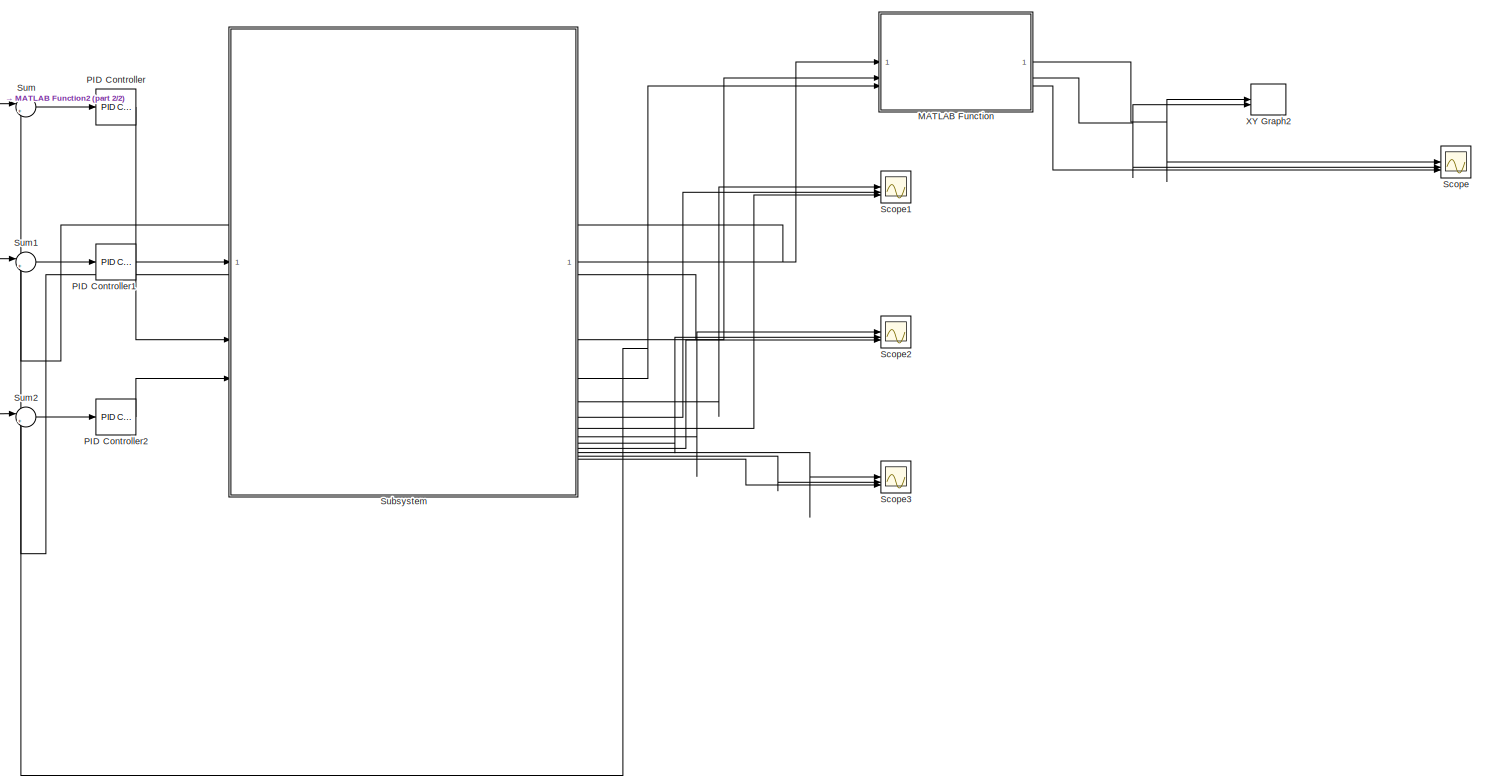
[diagram: root canvas - part 1/2, most of the canvas]
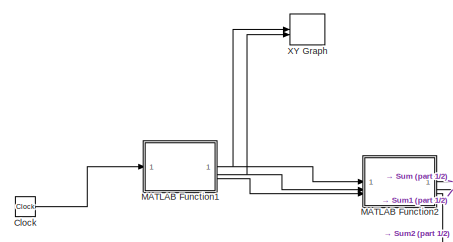
[diagram: root canvas - part 2/2, top left region]
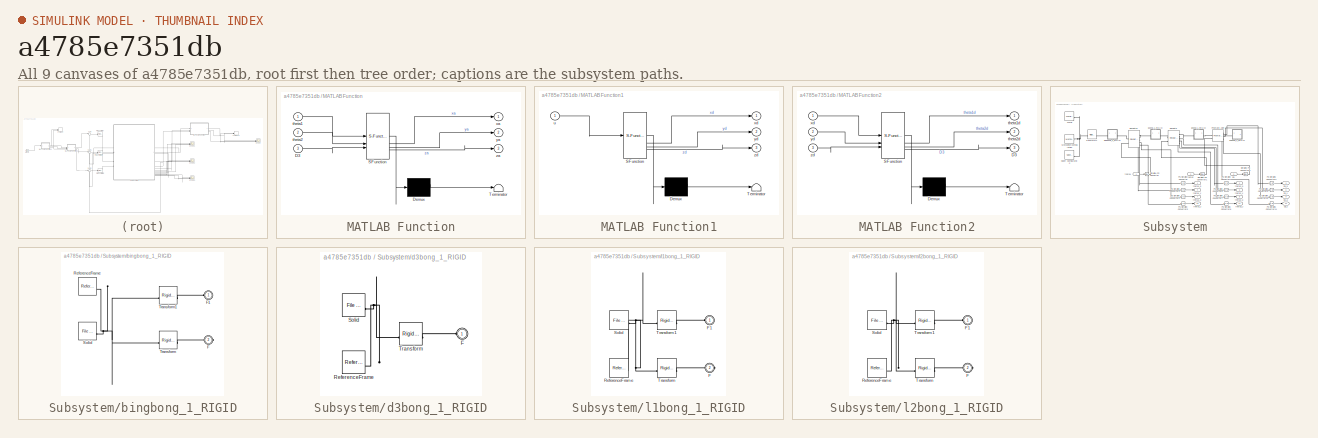
[diagram: thumbnail index - all 9 canvases of the model, root first then tree order]
MODEL slx_a4785e7351db
KIND model
CONFIG AbsTol = auto
CONFIG EnableMultiTasking = off
CONFIG FixedStep = auto
CONFIG MaxStep = auto
CONFIG MinStep = auto
CONFIG RelTol = 1e-3
CONFIG SampleTimeConstraint = Unconstrained
CONFIG SolverName = VariableStepAuto
CONFIG StartTime = 0.0
CONFIG StopTime = 10.0
WORKSPACE source: external: MATLAB File  (data not in archive)
BLOCK [Clock] Clock
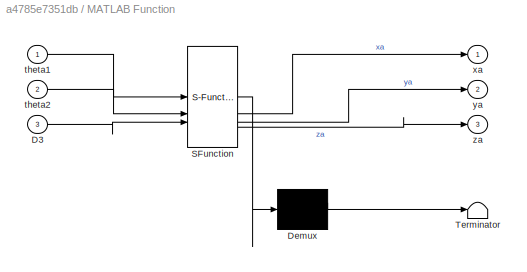
BLOCK [SubSystem] MATLAB Function
  ErrorFcn = Stateflow.Translate.translate
  PermitHierarchicalResolution = ExplicitOnly
  SFBlockType = MATLAB Function
  TreatAsAtomicUnit = on
BLOCK [Demux] MATLAB Function/ Demux 
  Outputs = 1
BLOCK [S-Function] MATLAB Function/ SFunction 
  EnableBusSupport = on
  FunctionName = sf_sfun
  PortCounts = [3 4]
  SFcnIsStateOwnerBlock = off
  SFunctionDeploymentMode = off
  Tag = Stateflow S-Function 2
BLOCK [Terminator] MATLAB Function/ Terminator 
BLOCK [Inport] MATLAB Function/D3
  Port = 3
BLOCK [Inport] MATLAB Function/theta1
BLOCK [Inport] MATLAB Function/theta2
  Port = 2
BLOCK [Outport] MATLAB Function/xa
BLOCK [Outport] MATLAB Function/ya
  Port = 2
BLOCK [Outport] MATLAB Function/za
  Port = 3
BLOCK [SubSystem] MATLAB Function1
  ErrorFcn = Stateflow.Translate.translate
  PermitHierarchicalResolution = ExplicitOnly
  SFBlockType = MATLAB Function
  TreatAsAtomicUnit = on
BLOCK [Demux] MATLAB Function1/ Demux 
  Outputs = 1
BLOCK [S-Function] MATLAB Function1/ SFunction 
  EnableBusSupport = on
  FunctionName = sf_sfun
  PortCounts = [1 4]
  SFcnIsStateOwnerBlock = off
  SFunctionDeploymentMode = off
  Tag = Stateflow S-Function 1
BLOCK [Terminator] MATLAB Function1/ Terminator 
BLOCK [Inport] MATLAB Function1/u
BLOCK [Outport] MATLAB Function1/xd
BLOCK [Outport] MATLAB Function1/yd
  Port = 2
BLOCK [Outport] MATLAB Function1/zd
  Port = 3
BLOCK [SubSystem] MATLAB Function2
  ErrorFcn = Stateflow.Translate.translate
  PermitHierarchicalResolution = ExplicitOnly
  SFBlockType = MATLAB Function
  TreatAsAtomicUnit = on
BLOCK [Demux] MATLAB Function2/ Demux 
  Outputs = 1
BLOCK [S-Function] MATLAB Function2/ SFunction 
  EnableBusSupport = on
  FunctionName = sf_sfun
  PortCounts = [3 4]
  SFcnIsStateOwnerBlock = off
  SFunctionDeploymentMode = off
  Tag = Stateflow S-Function 3
BLOCK [Terminator] MATLAB Function2/ Terminator 
BLOCK [Outport] MATLAB Function2/D3
  Port = 3
BLOCK [Outport] MATLAB Function2/theta1d
BLOCK [Outport] MATLAB Function2/theta2d
  Port = 2
BLOCK [Inport] MATLAB Function2/xd
BLOCK [Inport] MATLAB Function2/yd
  Port = 2
BLOCK [Inport] MATLAB Function2/zd
  Port = 3
BLOCK [Reference] PID Controller  REF=slpidlib/PID Controller
  LibrarySourceBlock = simulink/Continuous/PID Controller
  SourceBlock = slpidlib/PID Controller
  SourceType = PID 1dof
BLOCK [Reference] PID Controller1  REF=slpidlib/PID Controller
  LibrarySourceBlock = simulink/Continuous/PID Controller
  SourceBlock = slpidlib/PID Controller
  SourceType = PID 1dof
BLOCK [Reference] PID Controller2  REF=slpidlib/PID Controller
  LibrarySourceBlock = simulink/Continuous/PID Controller
  SourceBlock = slpidlib/PID Controller
  SourceType = PID 1dof
BLOCK [Scope] Scope
  Floating = off
  NumInputPorts = 3
  ScopeSpecificationString = Simulink.scopes.TimeScopeBlockCfg('CurrentConfiguration', extmgr.ConfigurationSet(extmgr.Configuration('Core','General UI',true),extmgr.Configuration('Core','Source UI',true),extmgr.Configuration('Sources','WiredSimulink',true),extmgr.Configuration('Visuals','Time Domain',true,'SerializedDisplays',{struct('MinYLimReal','-0.56785','MaxYLimReal','0.84087','YLabelReal','','MinYLimMag','0.00000','MaxY...<+2909ch>
BLOCK [Scope] Scope1
  Floating = off
  NumInputPorts = 3
  ScopeSpecificationString = Simulink.scopes.TimeScopeBlockCfg('CurrentConfiguration', extmgr.ConfigurationSet(extmgr.Configuration('Core','General UI',true),extmgr.Configuration('Core','Source UI',true),extmgr.Configuration('Sources','WiredSimulink',true,'DataLoggingVariableName','ScopeData1'),extmgr.Configuration('Visuals','Time Domain',true,'SerializedDisplays',{struct('MinYLimReal','-3870.19923','MaxYLimReal','7429.14957'...<+3769ch>
BLOCK [Scope] Scope2
  Floating = off
  NumInputPorts = 3
  ScopeSpecificationString = Simulink.scopes.TimeScopeBlockCfg('CurrentConfiguration', extmgr.ConfigurationSet(extmgr.Configuration('Core','General UI',true),extmgr.Configuration('Core','Source UI',true),extmgr.Configuration('Sources','WiredSimulink',true,'DataLoggingVariableName','ScopeData2'),extmgr.Configuration('Visuals','Time Domain',true,'SerializedDisplays',{struct('MinYLimReal','-19665340.18876','MaxYLimReal','3658048...<+3799ch>
BLOCK [Scope] Scope3
  Floating = off
  NumInputPorts = 3
  ScopeSpecificationString = Simulink.scopes.TimeScopeBlockCfg('CurrentConfiguration', extmgr.ConfigurationSet(extmgr.Configuration('Core','General UI',true),extmgr.Configuration('Core','Source UI',true),extmgr.Configuration('Sources','WiredSimulink',true,'DataLoggingVariableName','ScopeData3'),extmgr.Configuration('Visuals','Time Domain',true,'SerializedDisplays',{struct('MinYLimReal','-47314969.21408','MaxYLimReal','8801133...<+3803ch>
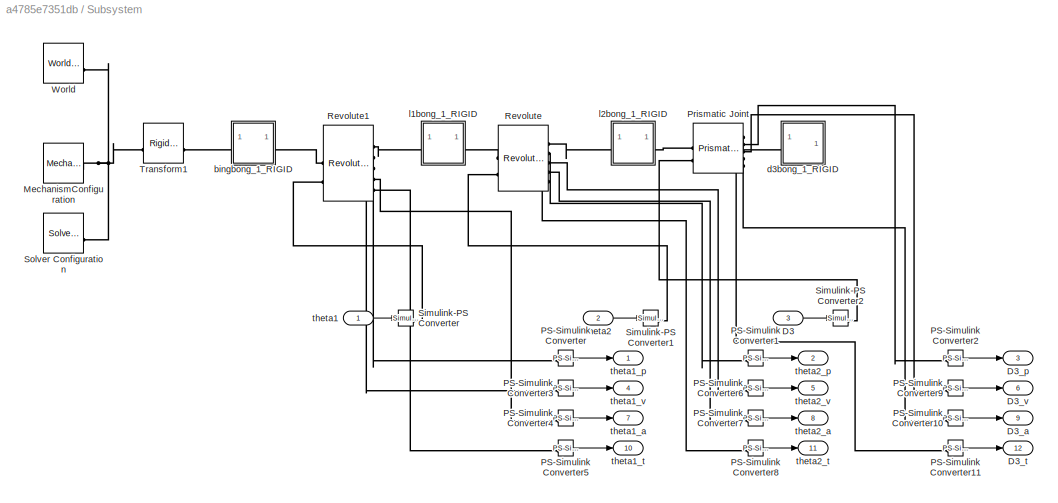
BLOCK [SubSystem] Subsystem
BLOCK [Inport] Subsystem/D3
  Port = 3
BLOCK [Outport] Subsystem/D3_a
  Port = 9
BLOCK [Outport] Subsystem/D3_p
  Port = 3
BLOCK [Outport] Subsystem/D3_t
  Port = 12
BLOCK [Outport] Subsystem/D3_v
  Port = 6
BLOCK [Reference] Subsystem/MechanismConfiguration  REF=sm_lib/Utilities/Mechanism
Configuration
  SourceBlock = sm_lib/Utilities/Mechanism\nConfiguration
  SourceType = Mechanism\nConfiguration
BLOCK [Reference] Subsystem/PS-Simulink Converter  REF=nesl_utility/PS-Simulink
Converter
  SourceBlock = nesl_utility/PS-Simulink\nConverter
  SourceType = PS-Simulink\nConverter
BLOCK [Reference] Subsystem/PS-Simulink Converter1  REF=nesl_utility/PS-Simulink
Converter
  SourceBlock = nesl_utility/PS-Simulink\nConverter
  SourceType = PS-Simulink\nConverter
BLOCK [Reference] Subsystem/PS-Simulink Converter10  REF=nesl_utility/PS-Simulink
Converter
  SourceBlock = nesl_utility/PS-Simulink\nConverter
  SourceType = PS-Simulink\nConverter
BLOCK [Reference] Subsystem/PS-Simulink Converter11  REF=nesl_utility/PS-Simulink
Converter
  SourceBlock = nesl_utility/PS-Simulink\nConverter
  SourceType = PS-Simulink\nConverter
BLOCK [Reference] Subsystem/PS-Simulink Converter2  REF=nesl_utility/PS-Simulink
Converter
  SourceBlock = nesl_utility/PS-Simulink\nConverter
  SourceType = PS-Simulink\nConverter
BLOCK [Reference] Subsystem/PS-Simulink Converter3  REF=nesl_utility/PS-Simulink
Converter
  SourceBlock = nesl_utility/PS-Simulink\nConverter
  SourceType = PS-Simulink\nConverter
BLOCK [Reference] Subsystem/PS-Simulink Converter4  REF=nesl_utility/PS-Simulink
Converter
  SourceBlock = nesl_utility/PS-Simulink\nConverter
  SourceType = PS-Simulink\nConverter
BLOCK [Reference] Subsystem/PS-Simulink Converter5  REF=nesl_utility/PS-Simulink
Converter
  SourceBlock = nesl_utility/PS-Simulink\nConverter
  SourceType = PS-Simulink\nConverter
BLOCK [Reference] Subsystem/PS-Simulink Converter6  REF=nesl_utility/PS-Simulink
Converter
  SourceBlock = nesl_utility/PS-Simulink\nConverter
  SourceType = PS-Simulink\nConverter
BLOCK [Reference] Subsystem/PS-Simulink Converter7  REF=nesl_utility/PS-Simulink
Converter
  SourceBlock = nesl_utility/PS-Simulink\nConverter
  SourceType = PS-Simulink\nConverter
BLOCK [Reference] Subsystem/PS-Simulink Converter8  REF=nesl_utility/PS-Simulink
Converter
  SourceBlock = nesl_utility/PS-Simulink\nConverter
  SourceType = PS-Simulink\nConverter
BLOCK [Reference] Subsystem/PS-Simulink Converter9  REF=nesl_utility/PS-Simulink
Converter
  SourceBlock = nesl_utility/PS-Simulink\nConverter
  SourceType = PS-Simulink\nConverter
BLOCK [Reference] Subsystem/Prismatic Joint  REF=sm_lib/Joints/Prismatic
Joint
  SourceBlock = sm_lib/Joints/Prismatic\nJoint
  SourceType = Prismatic\nJoint
BLOCK [Reference] Subsystem/Revolute  REF=sm_lib/Joints/Revolute Joint
  SourceBlock = sm_lib/Joints/Revolute Joint
  SourceType = Revolute Joint
BLOCK [Reference] Subsystem/Revolute1  REF=sm_lib/Joints/Revolute Joint
  SourceBlock = sm_lib/Joints/Revolute Joint
  SourceType = Revolute Joint
BLOCK [Reference] Subsystem/Simulink-PS Converter  REF=nesl_utility/Simulink-PS
Converter
  SourceBlock = nesl_utility/Simulink-PS\nConverter
  SourceType = Simulink-PS\nConverter
BLOCK [Reference] Subsystem/Simulink-PS Converter1  REF=nesl_utility/Simulink-PS
Converter
  SourceBlock = nesl_utility/Simulink-PS\nConverter
  SourceType = Simulink-PS\nConverter
BLOCK [Reference] Subsystem/Simulink-PS Converter2  REF=nesl_utility/Simulink-PS
Converter
  SourceBlock = nesl_utility/Simulink-PS\nConverter
  SourceType = Simulink-PS\nConverter
BLOCK [Reference] Subsystem/Solver Configuration  REF=nesl_utility/Solver
Configuration
  SourceBlock = nesl_utility/Solver\nConfiguration
  SourceType = Solver\nConfiguration
BLOCK [Reference] Subsystem/Transform1  REF=sm_lib/Frames and
Transforms/Rigid
Transform
  SourceBlock = sm_lib/Frames and\nTransforms/Rigid\nTransform
  SourceType = Rigid\nTransform
BLOCK [Reference] Subsystem/World  REF=sm_lib/Frames and
Transforms/World Frame
  SourceBlock = sm_lib/Frames and\nTransforms/World Frame
  SourceType = World Frame
BLOCK [SubSystem] Subsystem/bingbong_1_RIGID
BLOCK [PMIOPort] Subsystem/bingbong_1_RIGID/F
  Port = 2
  Side = Right
BLOCK [PMIOPort] Subsystem/bingbong_1_RIGID/F1
  Side = Left
BLOCK [Reference] Subsystem/bingbong_1_RIGID/ReferenceFrame  REF=sm_lib/Frames and
Transforms/Reference
Frame
  SourceBlock = sm_lib/Frames and\nTransforms/Reference\nFrame
  SourceType = Reference\nFrame
BLOCK [Reference] Subsystem/bingbong_1_RIGID/Solid  REF=sm_lib/Body Elements/File Solid
  SourceBlock = sm_lib/Body Elements/File Solid
  SourceType = File Solid
BLOCK [Reference] Subsystem/bingbong_1_RIGID/Transform  REF=sm_lib/Frames and
Transforms/Rigid
Transform
  SourceBlock = sm_lib/Frames and\nTransforms/Rigid\nTransform
  SourceType = Rigid\nTransform
BLOCK [Reference] Subsystem/bingbong_1_RIGID/Transform1  REF=sm_lib/Frames and
Transforms/Rigid
Transform
  SourceBlock = sm_lib/Frames and\nTransforms/Rigid\nTransform
  SourceType = Rigid\nTransform
BLOCK [SubSystem] Subsystem/d3bong_1_RIGID
BLOCK [PMIOPort] Subsystem/d3bong_1_RIGID/F
  Side = Left
BLOCK [Reference] Subsystem/d3bong_1_RIGID/ReferenceFrame  REF=sm_lib/Frames and
Transforms/Reference
Frame
  SourceBlock = sm_lib/Frames and\nTransforms/Reference\nFrame
  SourceType = Reference\nFrame
BLOCK [Reference] Subsystem/d3bong_1_RIGID/Solid  REF=sm_lib/Body Elements/File Solid
  SourceBlock = sm_lib/Body Elements/File Solid
  SourceType = File Solid
BLOCK [Reference] Subsystem/d3bong_1_RIGID/Transform  REF=sm_lib/Frames and
Transforms/Rigid
Transform
  SourceBlock = sm_lib/Frames and\nTransforms/Rigid\nTransform
  SourceType = Rigid\nTransform
BLOCK [SubSystem] Subsystem/l1bong_1_RIGID
BLOCK [PMIOPort] Subsystem/l1bong_1_RIGID/F
  Port = 2
  Side = Right
BLOCK [PMIOPort] Subsystem/l1bong_1_RIGID/F1
  Side = Left
BLOCK [Reference] Subsystem/l1bong_1_RIGID/ReferenceFrame  REF=sm_lib/Frames and
Transforms/Reference
Frame
  SourceBlock = sm_lib/Frames and\nTransforms/Reference\nFrame
  SourceType = Reference\nFrame
BLOCK [Reference] Subsystem/l1bong_1_RIGID/Solid  REF=sm_lib/Body Elements/File Solid
  SourceBlock = sm_lib/Body Elements/File Solid
  SourceType = File Solid
BLOCK [Reference] Subsystem/l1bong_1_RIGID/Transform  REF=sm_lib/Frames and
Transforms/Rigid
Transform
  SourceBlock = sm_lib/Frames and\nTransforms/Rigid\nTransform
  SourceType = Rigid\nTransform
BLOCK [Reference] Subsystem/l1bong_1_RIGID/Transform1  REF=sm_lib/Frames and
Transforms/Rigid
Transform
  SourceBlock = sm_lib/Frames and\nTransforms/Rigid\nTransform
  SourceType = Rigid\nTransform
BLOCK [SubSystem] Subsystem/l2bong_1_RIGID
BLOCK [PMIOPort] Subsystem/l2bong_1_RIGID/F
  Port = 2
  Side = Right
BLOCK [PMIOPort] Subsystem/l2bong_1_RIGID/F1
  Side = Left
BLOCK [Reference] Subsystem/l2bong_1_RIGID/ReferenceFrame  REF=sm_lib/Frames and
Transforms/Reference
Frame
  SourceBlock = sm_lib/Frames and\nTransforms/Reference\nFrame
  SourceType = Reference\nFrame
BLOCK [Reference] Subsystem/l2bong_1_RIGID/Solid  REF=sm_lib/Body Elements/File Solid
  SourceBlock = sm_lib/Body Elements/File Solid
  SourceType = File Solid
BLOCK [Reference] Subsystem/l2bong_1_RIGID/Transform  REF=sm_lib/Frames and
Transforms/Rigid
Transform
  SourceBlock = sm_lib/Frames and\nTransforms/Rigid\nTransform
  SourceType = Rigid\nTransform
BLOCK [Reference] Subsystem/l2bong_1_RIGID/Transform1  REF=sm_lib/Frames and
Transforms/Rigid
Transform
  SourceBlock = sm_lib/Frames and\nTransforms/Rigid\nTransform
  SourceType = Rigid\nTransform
BLOCK [Inport] Subsystem/theta1
BLOCK [Outport] Subsystem/theta1_a
  Port = 7
BLOCK [Outport] Subsystem/theta1_p
BLOCK [Outport] Subsystem/theta1_t
  Port = 10
BLOCK [Outport] Subsystem/theta1_v
  Port = 4
BLOCK [Inport] Subsystem/theta2
  Port = 2
BLOCK [Outport] Subsystem/theta2_a
  Port = 8
BLOCK [Outport] Subsystem/theta2_p
  Port = 2
BLOCK [Outport] Subsystem/theta2_t
  Port = 11
BLOCK [Outport] Subsystem/theta2_v
  Port = 5
BLOCK [Sum] Sum
  Inputs = |+-
BLOCK [Sum] Sum1
  Inputs = |+-
BLOCK [Sum] Sum2
  Inputs = |+-
BLOCK [Record] XY Graph
  CompatibilityTag = XY
  FileSettingsInternal = {"entries":[{"content":{"excelSettings":{"content":{},"type":"Streamout.ExcelSettings"}},"type":"Streamout.FileSettingStorage","uuid":""}],"packageUris":["http:\/\/schema.mathworks.com\/mf0\/streamout_blocks\/R2020a"],"version":"1.0"}
  Layout = [1 1]
  SignalsInternal = {"entries":[{"content":{"signals":[{"content":{"blockPath":[],"dimensions":[1],"domain":"","lineColor":"#a2142f","plots":[ 1 ],"port":1,"sid":[""],"signalID":1,"signalName":"MATLAB Function1:1"},"type":"RecordBlkView.Signal","uuid":""},{"content":{"blockPath":[],"dimensions":[1],"domain":"","lineColor":"#139fff","plots":[ 1 ],"port":2,"sid":[""],"signalID":2,"signalName":"MATLAB Function1:2"},"typ...<+182ch>
  VisualizationBindings = {"xyplotplugin":{"info":[{"series":[{"bindingParametersList":[{"parameter":"X-Axis","signalID":1,"signalName":"MATLAB Function1:1"},{"parameter":"Y-Axis","signalID":2,"signalName":"MATLAB Function1:2"}],"seriesID":0}],"subplotID":1}]}}
BLOCK [Record] XY Graph2
  CompatibilityTag = XY
  FileSettingsInternal = {"entries":[{"content":{"excelSettings":{"content":{},"type":"Streamout.ExcelSettings"}},"type":"Streamout.FileSettingStorage","uuid":""}],"packageUris":["http:\/\/schema.mathworks.com\/mf0\/streamout_blocks\/R2020a"],"version":"1.0"}
  Layout = [1 1]
  SignalsInternal = {"entries":[{"content":{"signals":[{"content":{"blockPath":[],"dimensions":[1],"domain":"","lineColor":"#a2142f","plots":[ 1 ],"port":1,"sid":[""],"signalID":1,"signalName":"MATLAB Function:1"},"type":"RecordBlkView.Signal","uuid":""},{"content":{"blockPath":[],"dimensions":[1],"domain":"","lineColor":"#139fff","plots":[ 1 ],"port":2,"sid":[""],"signalID":2,"signalName":"MATLAB Function:2"},"type"...<+180ch>
  VisualizationBindings = {"xyplotplugin":{"info":[{"series":[{"bindingParametersList":[{"parameter":"X-Axis","signalID":1,"signalName":"MATLAB Function:1"},{"parameter":"Y-Axis","signalID":2,"signalName":"MATLAB Function:2"}],"seriesID":0}],"subplotID":1}]}}
LINE Clock:1 -> MATLAB Function1:1
NET MATLAB Function1:1 -> MATLAB Function2:1, XY Graph:1
NET MATLAB Function1:2 -> MATLAB Function2:2, XY Graph:2
LINE MATLAB Function1:3 -> MATLAB Function2:3
LINE MATLAB Function2:1 -> Sum:1
LINE MATLAB Function2:2 -> Sum1:1
LINE MATLAB Function2:3 -> Sum2:1
NET MATLAB Function:1 -> Scope:1, XY Graph2:1
NET MATLAB Function:2 -> Scope:2, XY Graph2:2
LINE MATLAB Function:3 -> Scope:3
LINE PID Controller1:1 -> Subsystem:2
LINE PID Controller2:1 -> Subsystem:3
LINE PID Controller:1 -> Subsystem:1
LINE Subsystem/D3:1 -> Subsystem/Simulink-PS Converter2:1
LINE Subsystem/PS-Simulink Converter10:1 -> Subsystem/D3_a:1
LINE Subsystem/PS-Simulink Converter11:1 -> Subsystem/D3_t:1
LINE Subsystem/PS-Simulink Converter1:1 -> Subsystem/theta2_p:1
LINE Subsystem/PS-Simulink Converter2:1 -> Subsystem/D3_p:1
LINE Subsystem/PS-Simulink Converter3:1 -> Subsystem/theta1_v:1
LINE Subsystem/PS-Simulink Converter4:1 -> Subsystem/theta1_a:1
LINE Subsystem/PS-Simulink Converter5:1 -> Subsystem/theta1_t:1
LINE Subsystem/PS-Simulink Converter6:1 -> Subsystem/theta2_v:1
LINE Subsystem/PS-Simulink Converter7:1 -> Subsystem/theta2_a:1
LINE Subsystem/PS-Simulink Converter8:1 -> Subsystem/theta2_t:1
LINE Subsystem/PS-Simulink Converter9:1 -> Subsystem/D3_v:1
LINE Subsystem/PS-Simulink Converter:1 -> Subsystem/theta1_p:1
LINE Subsystem/theta1:1 -> Subsystem/Simulink-PS Converter:1
LINE Subsystem/theta2:1 -> Subsystem/Simulink-PS Converter1:1
NET Subsystem:1 -> MATLAB Function:1, Sum:2
LINE Subsystem:10 -> Scope3:1
LINE Subsystem:11 -> Scope3:2
LINE Subsystem:12 -> Scope3:3
NET Subsystem:2 -> MATLAB Function:2, Sum1:2
NET Subsystem:3 -> MATLAB Function:3, Sum2:2
LINE Subsystem:4 -> Scope1:1
LINE Subsystem:5 -> Scope1:2
LINE Subsystem:6 -> Scope1:3
LINE Subsystem:7 -> Scope2:1
LINE Subsystem:8 -> Scope2:2
LINE Subsystem:9 -> Scope2:3
LINE Sum1:1 -> PID Controller1:1
LINE Sum2:1 -> PID Controller2:1
LINE Sum:1 -> PID Controller:1
PNET net1: Subsystem/MechanismConfiguration:RConn1 -- Subsystem/Solver Configuration:RConn1 -- Subsystem/Transform1:LConn1 -- Subsystem/World:RConn1
PLINE Subsystem/PS-Simulink Converter10:LConn1 -- Subsystem/Prismatic Joint:RConn4
PLINE Subsystem/PS-Simulink Converter11:LConn1 -- Subsystem/Prismatic Joint:RConn5
PLINE Subsystem/PS-Simulink Converter1:LConn1 -- Subsystem/Revolute:RConn2
PLINE Subsystem/PS-Simulink Converter2:LConn1 -- Subsystem/Prismatic Joint:RConn2
PLINE Subsystem/PS-Simulink Converter3:LConn1 -- Subsystem/Revolute1:RConn3
PLINE Subsystem/PS-Simulink Converter4:LConn1 -- Subsystem/Revolute1:RConn4
PLINE Subsystem/PS-Simulink Converter5:LConn1 -- Subsystem/Revolute1:RConn5
PLINE Subsystem/PS-Simulink Converter6:LConn1 -- Subsystem/Revolute:RConn3
PLINE Subsystem/PS-Simulink Converter7:LConn1 -- Subsystem/Revolute:RConn4
PLINE Subsystem/PS-Simulink Converter8:LConn1 -- Subsystem/Revolute:RConn5
PLINE Subsystem/PS-Simulink Converter9:LConn1 -- Subsystem/Prismatic Joint:RConn3
PLINE Subsystem/PS-Simulink Converter:LConn1 -- Subsystem/Revolute1:RConn2
PLINE Subsystem/Prismatic Joint:LConn1 -- Subsystem/l2bong_1_RIGID:RConn1
PLINE Subsystem/Prismatic Joint:LConn2 -- Subsystem/Simulink-PS Converter2:RConn1
PLINE Subsystem/Prismatic Joint:RConn1 -- Subsystem/d3bong_1_RIGID:LConn1
PLINE Subsystem/Revolute1:LConn1 -- Subsystem/bingbong_1_RIGID:RConn1
PLINE Subsystem/Revolute1:LConn2 -- Subsystem/Simulink-PS Converter:RConn1
PLINE Subsystem/Revolute1:RConn1 -- Subsystem/l1bong_1_RIGID:LConn1
PLINE Subsystem/Revolute:LConn1 -- Subsystem/l1bong_1_RIGID:RConn1
PLINE Subsystem/Revolute:LConn2 -- Subsystem/Simulink-PS Converter1:RConn1
PLINE Subsystem/Revolute:RConn1 -- Subsystem/l2bong_1_RIGID:LConn1
PLINE Subsystem/Transform1:RConn1 -- Subsystem/bingbong_1_RIGID:LConn1
PLINE Subsystem/bingbong_1_RIGID/F1:RConn1 -- Subsystem/bingbong_1_RIGID/Transform1:RConn1
PLINE Subsystem/bingbong_1_RIGID/F:RConn1 -- Subsystem/bingbong_1_RIGID/Transform:RConn1
PNET net2: Subsystem/bingbong_1_RIGID/ReferenceFrame:RConn1 -- Subsystem/bingbong_1_RIGID/Solid:RConn1 -- Subsystem/bingbong_1_RIGID/Transform1:LConn1 -- Subsystem/bingbong_1_RIGID/Transform:LConn1
PLINE Subsystem/d3bong_1_RIGID/F:RConn1 -- Subsystem/d3bong_1_RIGID/Transform:RConn1
PNET net3: Subsystem/d3bong_1_RIGID/ReferenceFrame:RConn1 -- Subsystem/d3bong_1_RIGID/Solid:RConn1 -- Subsystem/d3bong_1_RIGID/Transform:LConn1
PLINE Subsystem/l1bong_1_RIGID/F1:RConn1 -- Subsystem/l1bong_1_RIGID/Transform1:RConn1
PLINE Subsystem/l1bong_1_RIGID/F:RConn1 -- Subsystem/l1bong_1_RIGID/Transform:RConn1
PNET net4: Subsystem/l1bong_1_RIGID/ReferenceFrame:RConn1 -- Subsystem/l1bong_1_RIGID/Solid:RConn1 -- Subsystem/l1bong_1_RIGID/Transform1:LConn1 -- Subsystem/l1bong_1_RIGID/Transform:LConn1
PLINE Subsystem/l2bong_1_RIGID/F1:RConn1 -- Subsystem/l2bong_1_RIGID/Transform1:RConn1
PLINE Subsystem/l2bong_1_RIGID/F:RConn1 -- Subsystem/l2bong_1_RIGID/Transform:RConn1
PNET net5: Subsystem/l2bong_1_RIGID/ReferenceFrame:RConn1 -- Subsystem/l2bong_1_RIGID/Solid:RConn1 -- Subsystem/l2bong_1_RIGID/Transform1:LConn1 -- Subsystem/l2bong_1_RIGID/Transform:LConn1
note: NET lines group one-source signal fan-out (src -> all destinations, sorted); 1:1 wires keep LINE; PNET lines group multi-terminal physical nets as a canonical sorted terminal list (undirected conserving connections); 2-terminal nets keep the pairwise PLINE form
CHART MATLAB Function1 states=1 transitions=1
  STATE_LABEL 'eML_blk_kernel()'
  STATE_LABEL 'SCRIPT:\nfunction [xd,yd,zd] = Desired_trajectory(u)\n\nxd=-0.1+0.5*sin((2*pi/5)*(u+pi/2));\nyd=-0.1+0.5*cos((2*pi/5)*(u+pi/2));\nzd=-0.5;\n'
CHART MATLAB Function states=1 transitions=1
  STATE_LABEL 'eML_blk_kernel()'
  STATE_LABEL 'SCRIPT:\nfunction [xa, ya, za] = Forward_Kinematics(theta1, theta2, D3)\nl1=0.4;\nl2=0.3;\nxa=l1*cos(theta1)+l2*cos(theta1+theta2);\nya=l1*sin(theta1)+l2*sin(theta1+theta2);\nza=D3;'
CHART MATLAB Function2 states=1 transitions=1
  STATE_LABEL 'eML_blk_kernel()'
  STATE_LABEL 'SCRIPT:\nfunction [theta1d,theta2d,D3] = inverse_kinematics(xd,yd,zd)\n\nl1=0.4;\nl2=0.3;\nD3=-0.5;\n\nv=(xd^2+yd^2-l1^2-l2^2)/(2*l1*l2);\ntheta2d=acos(v);\ntheta1d=atan(yd/xd)-atan((l2*sin(theta2d))/(l1+l2*cos(theta2d)));\n'
CHART  states=0 transitions=0
CHART  states=0 transitions=0
CHART  states=0 transitions=0
